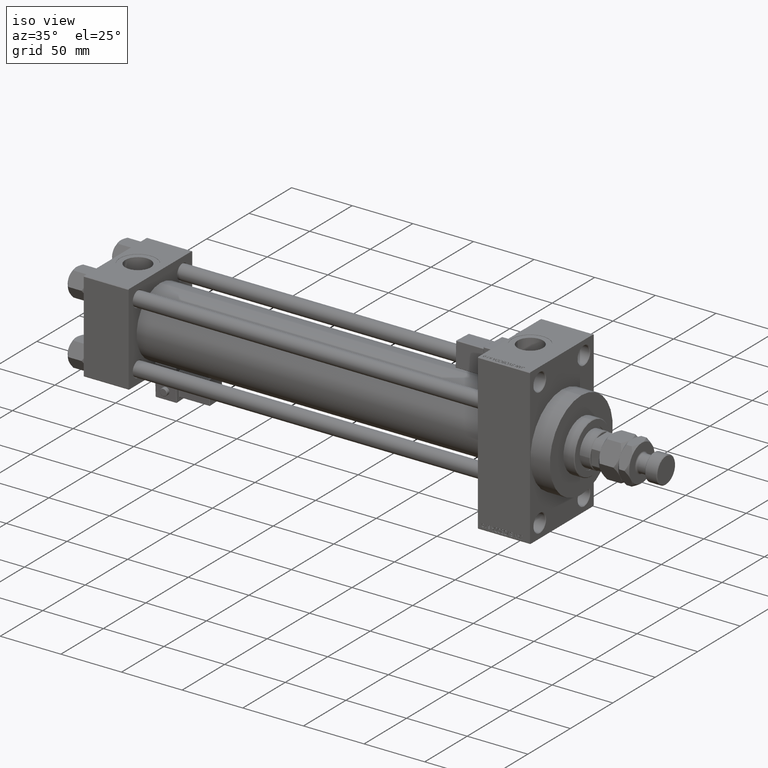
[diagram: clean part render]
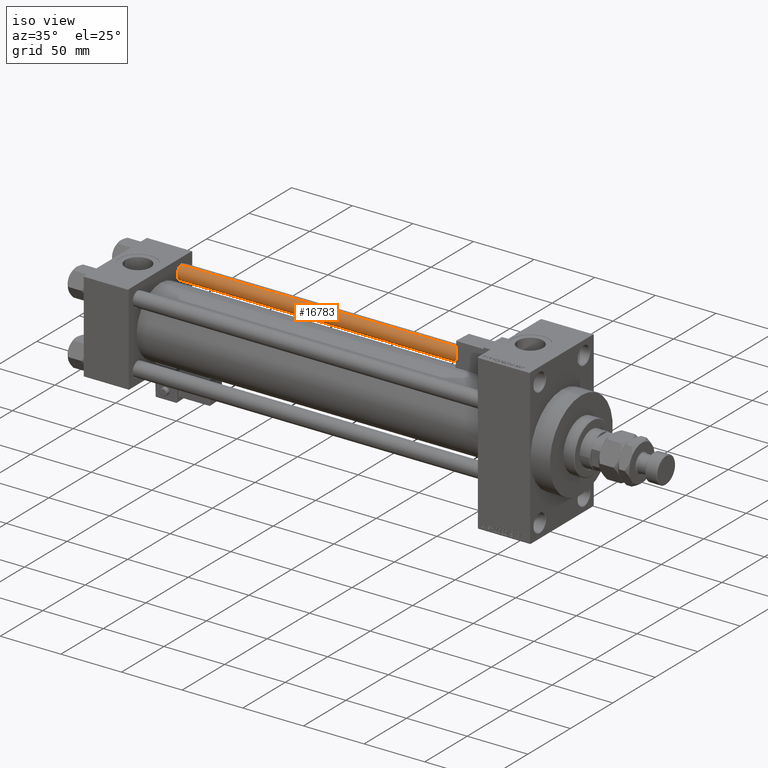
[diagram: same view with one face highlighted and labeled with its STEP entity id]
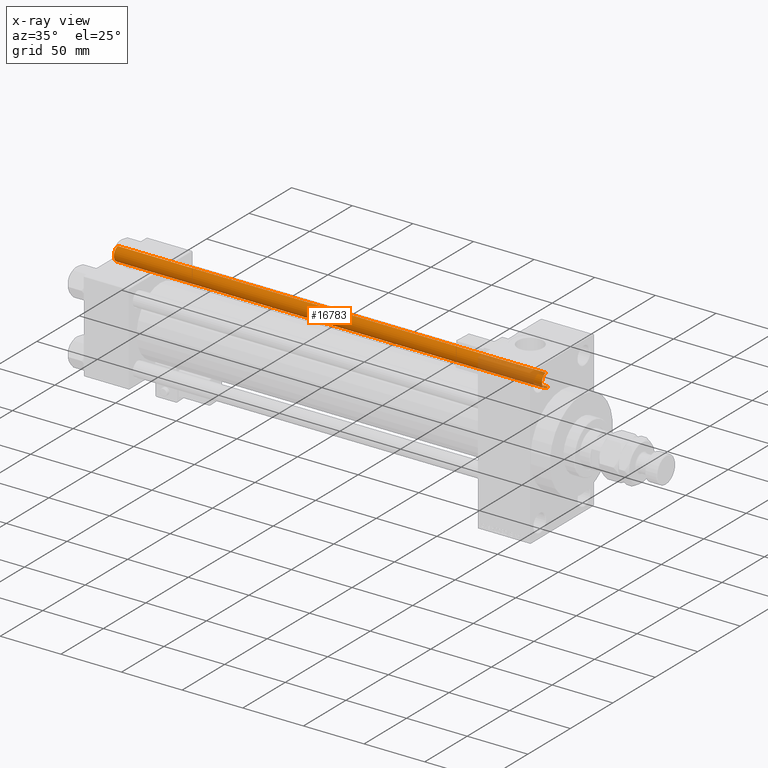
[diagram: x-ray of the same camera — body ghosted, the highlighted face saturated]
A machine part, iso view. The second image highlights one B-rep face of the part: STEP entity #16783.
The next image is the same camera in x-ray: the body ghosted, the highlighted face saturated — about 14% of this face is hidden behind the body in this view.
In plain terms, the highlighted cylindrical surface (edge-blend (fillet) strip) has radius 6 mm, axis along (-1, -0, 0).
Its self-contained STEP definition (entity closure, byte-faithful):
#1041 = VECTOR ( 'NONE', #22663, 1000.000000000000000 ) ;
#2290 = LINE ( 'NONE', #43960, #47179 ) ;
#9499 = ORIENTED_EDGE ( 'NONE', *, *, #20410, .F. ) ;
#13750 = DIRECTION ( 'NONE',  ( 1.000000000000000000, 0.000000000000000000, 0.000000000000000000 ) ) ;
#14121 = DIRECTION ( 'NONE',  ( -1.000000000000000000, 0.000000000000000000, 0.000000000000000000 ) ) ;
#16783 = ADVANCED_FACE ( 'NONE', ( #42624 ), #18161, .T. ) ;
#18161 = CYLINDRICAL_SURFACE ( 'NONE', #29050, 6.000000000000000888 ) ;
#18702 = DIRECTION ( 'NONE',  ( -0.000000000000000000, -0.000000000000000000, -1.000000000000000000 ) ) ;
#20275 = ORIENTED_EDGE ( 'NONE', *, *, #43382, .T. ) ;
#20286 = AXIS2_PLACEMENT_3D ( 'NONE', #26646, #30684, #13750 ) ;
#20410 = EDGE_CURVE ( 'NONE', #37746, #40085, #2290, .T. ) ;
#22005 = CIRCLE ( 'NONE', #20286, 6.000000000000000888 ) ;
#22648 = ORIENTED_EDGE ( 'NONE', *, *, #33725, .T. ) ;
#22663 = DIRECTION ( 'NONE',  ( -0.000000000000000000, -0.000000000000000000, -1.000000000000000000 ) ) ;
#24679 = CARTESIAN_POINT ( 'NONE',  ( -6.000000000000000888, 0.000000000000000000, 0.5000000000000559552 ) ) ;
#26130 = VERTEX_POINT ( 'NONE', #24679 ) ;
#26646 = CARTESIAN_POINT ( 'NONE',  ( 0.000000000000000000, 0.000000000000000000, 0.5000000000000559552 ) ) ;
#29050 = AXIS2_PLACEMENT_3D ( 'NONE', #50954, #35088, #14121 ) ;
#30458 = CARTESIAN_POINT ( 'NONE',  ( -6.000000000000000888, 0.000000000000000000, 354.0000000000000000 ) ) ;
#30567 = CARTESIAN_POINT ( 'NONE',  ( -6.000000000000000888, 0.000000000000000000, 353.5000000000000000 ) ) ;
#30684 = DIRECTION ( 'NONE',  ( -0.000000000000000000, -0.000000000000000000, 1.000000000000000000 ) ) ;
#30839 = CARTESIAN_POINT ( 'NONE',  ( 6.000000000000000888, 7.347880794884120722E-16, 0.5000000000000559552 ) ) ;
#30946 = DIRECTION ( 'NONE',  ( 0.000000000000000000, 0.000000000000000000, -1.000000000000000000 ) ) ;
#32991 = ORIENTED_EDGE ( 'NONE', *, *, #52002, .T. ) ;
#33725 = EDGE_CURVE ( 'NONE', #37746, #45627, #40470, .T. ) ;
#34207 = DIRECTION ( 'NONE',  ( 1.000000000000000000, 0.000000000000000000, 0.000000000000000000 ) ) ;
#34233 = LINE ( 'NONE', #30458, #1041 ) ;
#35088 = DIRECTION ( 'NONE',  ( -0.000000000000000000, -0.000000000000000000, -1.000000000000000000 ) ) ;
#36526 = EDGE_LOOP ( 'NONE', ( #9499, #22648, #32991, #20275 ) ) ;
#37746 = VERTEX_POINT ( 'NONE', #42560 ) ;
#39032 = CARTESIAN_POINT ( 'NONE',  ( 0.000000000000000000, 0.000000000000000000, 353.5000000000000000 ) ) ;
#40085 = VERTEX_POINT ( 'NONE', #30839 ) ;
#40470 = CIRCLE ( 'NONE', #42187, 6.000000000000000888 ) ;
#42187 = AXIS2_PLACEMENT_3D ( 'NONE', #39032, #30946, #34207 ) ;
#42560 = CARTESIAN_POINT ( 'NONE',  ( 6.000000000000000888, 7.347880794884120722E-16, 353.5000000000000000 ) ) ;
#42624 = FACE_OUTER_BOUND ( 'NONE', #36526, .T. ) ;
#43382 = EDGE_CURVE ( 'NONE', #26130, #40085, #22005, .T. ) ;
#43960 = CARTESIAN_POINT ( 'NONE',  ( 6.000000000000000888, 7.347880794884120722E-16, 354.0000000000000000 ) ) ;
#45627 = VERTEX_POINT ( 'NONE', #30567 ) ;
#47179 = VECTOR ( 'NONE', #18702, 1000.000000000000000 ) ;
#50954 = CARTESIAN_POINT ( 'NONE',  ( 0.000000000000000000, 0.000000000000000000, 354.0000000000000000 ) ) ;
#52002 = EDGE_CURVE ( 'NONE', #45627, #26130, #34233, .T. ) ;